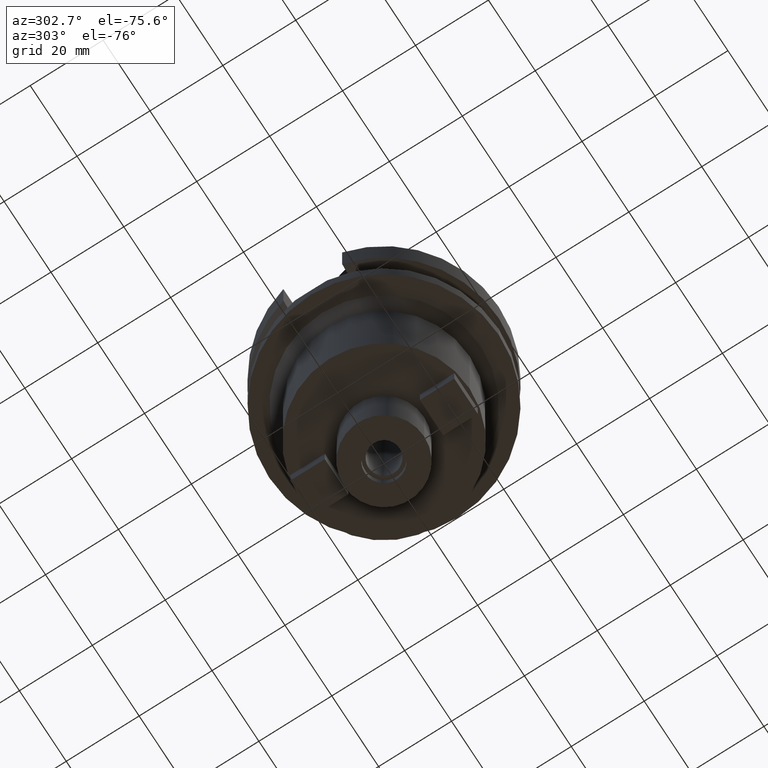
[diagram: clean part render]
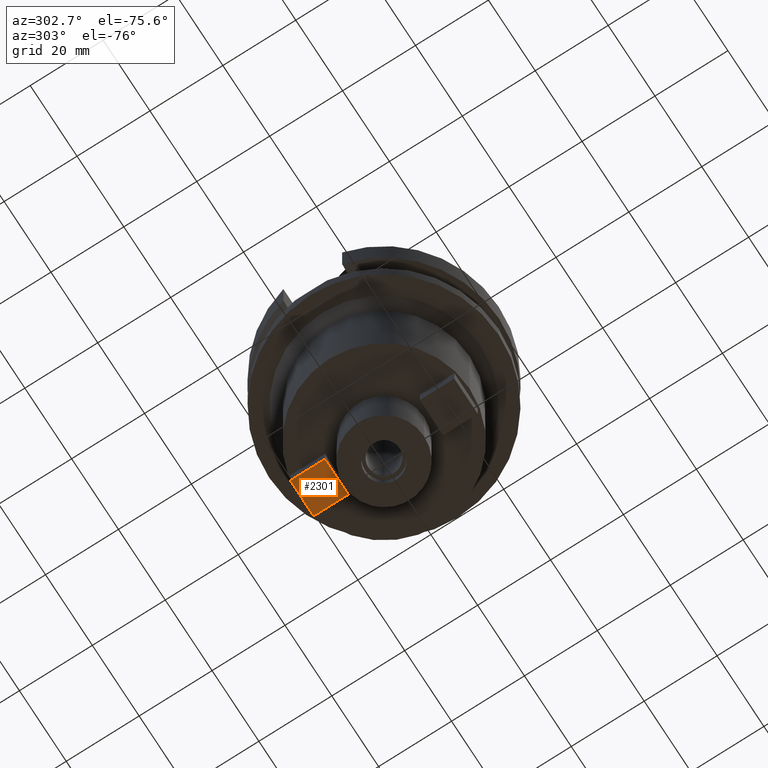
[diagram: same view with one face highlighted and labeled with its STEP entity id]
A machine part, auxiliary view. The second image highlights one B-rep face of the part: STEP entity #2301.
In plain terms, the highlighted planar face has unit normal (0, 0, -1).
Its self-contained STEP definition (entity closure, byte-faithful):
#1068=DIRECTION('',(-1.E0,0.E0,0.E0));
#1069=VECTOR('',#1068,1.E1);
#1070=CARTESIAN_POINT('',(5.E0,1.3E1,-6.5E1));
#1071=LINE('',#1070,#1069);
#1096=DIRECTION('',(0.E0,-1.E0,0.E0));
#1097=VECTOR('',#1096,9.5E0);
#1098=CARTESIAN_POINT('',(5.E0,2.25E1,-6.5E1));
#1099=LINE('',#1098,#1097);
#1124=DIRECTION('',(0.E0,-1.E0,0.E0));
#1125=VECTOR('',#1124,9.5E0);
#1126=CARTESIAN_POINT('',(-5.E0,2.25E1,-6.5E1));
#1127=LINE('',#1126,#1125);
#1131=DIRECTION('',(-1.E0,0.E0,0.E0));
#1132=VECTOR('',#1131,1.E1);
#1133=CARTESIAN_POINT('',(5.E0,2.25E1,-6.5E1));
#1134=LINE('',#1133,#1132);
#1385=CARTESIAN_POINT('',(-5.E0,1.3E1,-6.5E1));
#1386=VERTEX_POINT('',#1385);
#1387=CARTESIAN_POINT('',(-5.E0,2.25E1,-6.5E1));
#1388=VERTEX_POINT('',#1387);
#1389=CARTESIAN_POINT('',(5.E0,1.3E1,-6.5E1));
#1390=VERTEX_POINT('',#1389);
#1391=CARTESIAN_POINT('',(5.E0,2.25E1,-6.5E1));
#1392=VERTEX_POINT('',#1391);
#2290=CARTESIAN_POINT('',(-5.E0,1.3E1,-6.5E1));
#2291=DIRECTION('',(0.E0,0.E0,-1.E0));
#2292=DIRECTION('',(0.E0,1.E0,0.E0));
#2293=AXIS2_PLACEMENT_3D('',#2290,#2291,#2292);
#2294=PLANE('',#2293);
#2295=ORIENTED_EDGE('',*,*,#2242,.T.);
#2296=ORIENTED_EDGE('',*,*,#2257,.F.);
#2297=ORIENTED_EDGE('',*,*,#2271,.F.);
#2298=ORIENTED_EDGE('',*,*,#2284,.T.);
#2299=EDGE_LOOP('',(#2295,#2296,#2297,#2298));
#2300=FACE_OUTER_BOUND('',#2299,.F.);
#2242=EDGE_CURVE('',#1388,#1386,#1127,.T.);
#2257=EDGE_CURVE('',#1390,#1386,#1071,.T.);
#2271=EDGE_CURVE('',#1392,#1390,#1099,.T.);
#2284=EDGE_CURVE('',#1392,#1388,#1134,.T.);
#2301=ADVANCED_FACE('',(#2300),#2294,.T.);